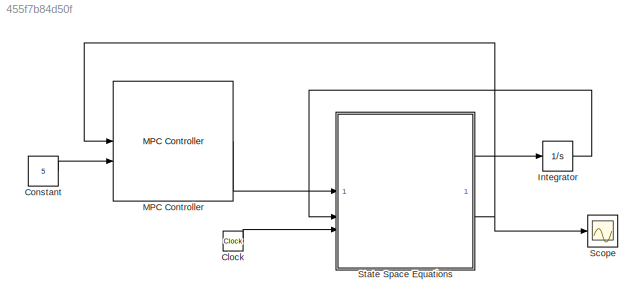
MODEL slx_455f7b84d50f
KIND model
CONFIG AbsTol = auto
CONFIG EnableMultiTasking = off
CONFIG FixedStep = 0.001
CONFIG MaxStep = auto
CONFIG MinStep = auto
CONFIG RelTol = 1e-3
CONFIG SampleTimeConstraint = Unconstrained
CONFIG SolverName = VariableStepAuto
CONFIG StartTime = 0.0
CONFIG StopTime = 20
BLOCK [Clock] Clock
BLOCK [Constant] Constant
  Value = 5
BLOCK [Integrator] Integrator
  InitialCondition = [0;0;0;0]
BLOCK [Reference] MPC Controller  REF=mpclib/MPC Controller  (lib defined in mdl_ae329e0e0455)
  SCDEnableBlockLinearizationSpecification = on
  SourceBlock = mpclib/MPC Controller
  SourceType = MPC
BLOCK [Scope] Scope
  Floating = off
  NumInputPorts = 1
  ScopeSpecificationString = Simulink.scopes.TimeScopeBlockCfg('CurrentConfiguration', extmgr.ConfigurationSet(extmgr.Configuration('Core','General UI',true),extmgr.Configuration('Core','Source UI',true),extmgr.Configuration('Sources','WiredSimulink',true),extmgr.Configuration('Visuals','Time Domain',true,'SerializedDisplays',{struct('MinYLimReal','-0.625','MaxYLimReal','5.62501','YLabelReal','','MinYLimMag','0.00000','MaxYLi...<+1544ch>
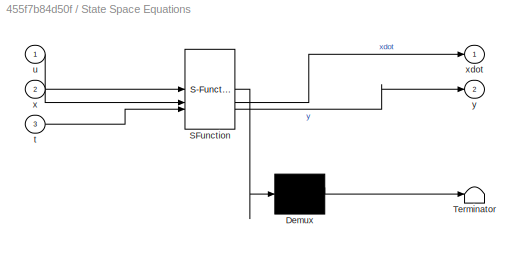
BLOCK [SubSystem] State Space Equations
  ErrorFcn = Stateflow.Translate.translate
  PermitHierarchicalResolution = ExplicitOnly
  SFBlockType = MATLAB Function
  TreatAsAtomicUnit = on
BLOCK [Demux] State Space Equations/ Demux 
  Outputs = 1
BLOCK [S-Function] State Space Equations/ SFunction 
  EnableBusSupport = on
  FunctionName = sf_sfun
  PortCounts = [3 3]
  SFcnIsStateOwnerBlock = off
  SFunctionDeploymentMode = off
  Tag = Stateflow S-Function 2
BLOCK [Terminator] State Space Equations/ Terminator 
BLOCK [Inport] State Space Equations/t
  Port = 3
BLOCK [Inport] State Space Equations/u
BLOCK [Inport] State Space Equations/x
  Port = 2
BLOCK [Outport] State Space Equations/xdot
BLOCK [Outport] State Space Equations/y
  Port = 2
LINE Clock:1 -> State Space Equations:3
LINE Constant:1 -> MPC Controller:2
LINE Integrator:1 -> State Space Equations:2
LINE MPC Controller:1 -> State Space Equations:1
LINE State Space Equations:1 -> Integrator:1
NET State Space Equations:2 -> MPC Controller:1, Scope:1
note: NET lines group one-source signal fan-out (src -> all destinations, sorted); 1:1 wires keep LINE
CHART State Space Equations states=1 transitions=1
  STATE_LABEL 'eML_blk_kernel()'
  STATE_LABEL 'SCRIPT:\nfunction [xdot, y] = State_Space_Equations(u, x, t)\n\n% Parameter ranges pertaining to the linear transfer function (Table 1)\n\nke = 75 + 25 * sin(t);\nKs = 0.375 + 0.125 * sin(t);\nKp = 2.5*10^(-12) + 2.5*10^(-12) * sin(t);\nC1 = 2*10^(-11) + 1*10^(-11) * sin(t);\nd = 700 + 100 * sin(t);\nma = 20.0 + 0.1 * sin(t);\nAi = 0.00203 + 0.0001 * sin(t);\nAo = 0.00152 + 0.00008 * sin(t);\nksp = 0.0012 + 0....<+636ch>'
CHART  states=0 transitions=0
